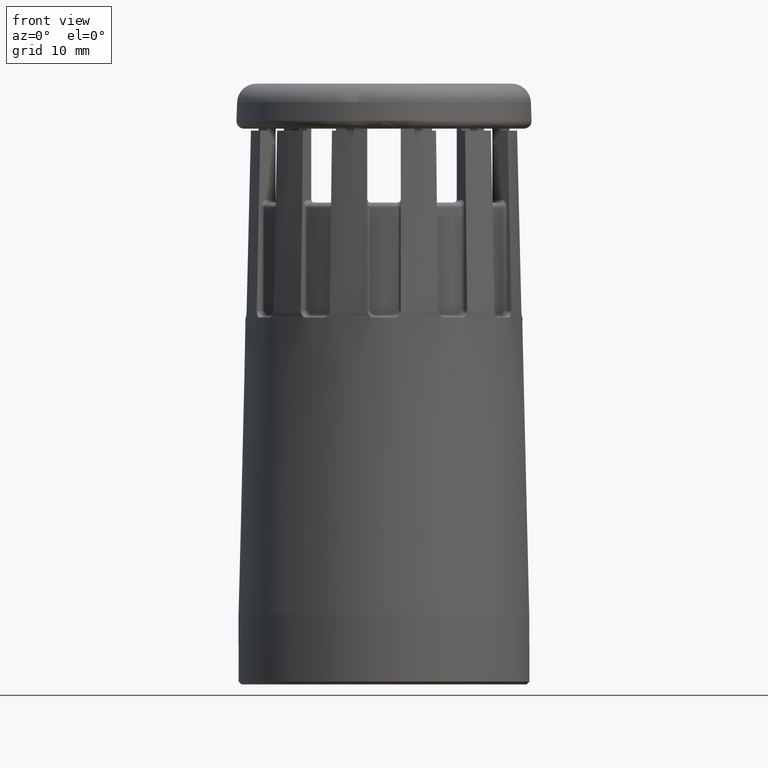
[diagram: clean part render]
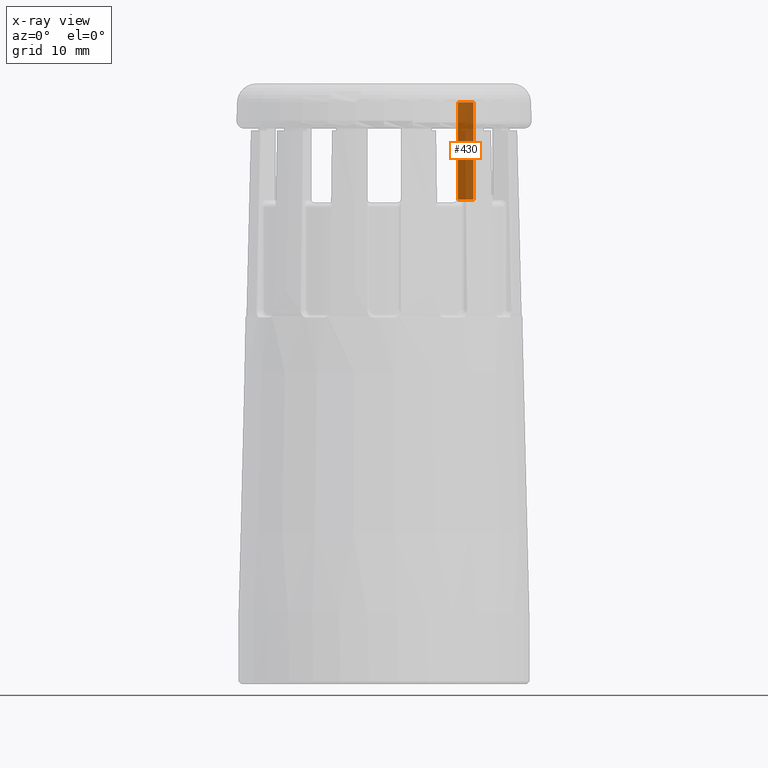
[diagram: x-ray — body ghosted, one internal face saturated and labeled with its STEP entity id]
A machine part, front view, then the same camera in x-ray: the body is ghosted and one INTERNAL B-rep face — a face not visible from any outside direction — is saturated and labeled: STEP entity #430.
In plain terms, the highlighted cylindrical surface (partial cylindrical patch) has radius 12.1 mm, axis along (-0, 0, -1).
Its self-contained STEP definition (entity closure, byte-faithful):
#430=ADVANCED_FACE('',(#974),#816,.F.);
#816=CYLINDRICAL_SURFACE('',#7225,12.1);
#974=FACE_OUTER_BOUND('',#1346,.T.);
#1346=EDGE_LOOP('',(#2566,#2567,#2568,#2569));
#1750=CIRCLE('',#7223,12.1);
#1751=CIRCLE('',#7224,12.1);
#2566=ORIENTED_EDGE('',*,*,#5531,.F.);
#2567=ORIENTED_EDGE('',*,*,#5490,.F.);
#2568=ORIENTED_EDGE('',*,*,#5532,.F.);
#2569=ORIENTED_EDGE('',*,*,#5488,.F.);
#4754=VERTEX_POINT('',#9958);
#4755=VERTEX_POINT('',#9960);
#4756=VERTEX_POINT('',#9964);
#4757=VERTEX_POINT('',#9965);
#5488=EDGE_CURVE('',#4754,#4755,#6565,.T.);
#5490=EDGE_CURVE('',#4756,#4757,#6566,.T.);
#5531=EDGE_CURVE('',#4757,#4754,#1750,.T.);
#5532=EDGE_CURVE('',#4755,#4756,#1751,.T.);
#6565=LINE('',#9959,#6887);
#6566=LINE('',#9963,#6888);
#6887=VECTOR('',#7947,1.);
#6888=VECTOR('',#7952,1.);
#7223=AXIS2_PLACEMENT_3D('',#10146,#7997,#7998);
#7224=AXIS2_PLACEMENT_3D('',#10147,#7999,#8000);
#7225=AXIS2_PLACEMENT_3D('',#10148,#8001,#8002);
#7947=DIRECTION('',(0.,0.,-1.));
#7952=DIRECTION('',(0.,0.,1.));
#7997=DIRECTION('',(0.,0.,-1.));
#7998=DIRECTION('',(-1.,0.,0.));
#7999=DIRECTION('',(1.232717E-16,1.232717E-16,1.));
#8000=DIRECTION('',(0.707106781186508,0.707106781186587,0.));
#8001=DIRECTION('',(-2.449213E-16,0.,-1.));
#8002=DIRECTION('',(1.,0.,0.));
#9958=CARTESIAN_POINT('',(9.33451126169429,7.69914927153001,46.7468052243512));
#9959=CARTESIAN_POINT('',(9.33451126170674,7.69914927151492,47.));
#9960=CARTESIAN_POINT('',(9.33451126170674,7.69914927151492,36.6));
#9963=CARTESIAN_POINT('',(7.69914927151399,9.33451126170748,36.6));
#9964=CARTESIAN_POINT('',(7.69914927151399,9.33451126170748,36.6));
#9965=CARTESIAN_POINT('',(7.69914927151399,9.33451126170748,46.7468052243512));
#10146=CARTESIAN_POINT('',(0.,-1.2490009027033E-13,46.7468052243512));
#10147=CARTESIAN_POINT('',(-9.18420788789426E-16,-1.2490009027033E-13,36.6));
#10148=CARTESIAN_POINT('',(3.18579211210716E-16,-1.2490009027033E-13,41.65));